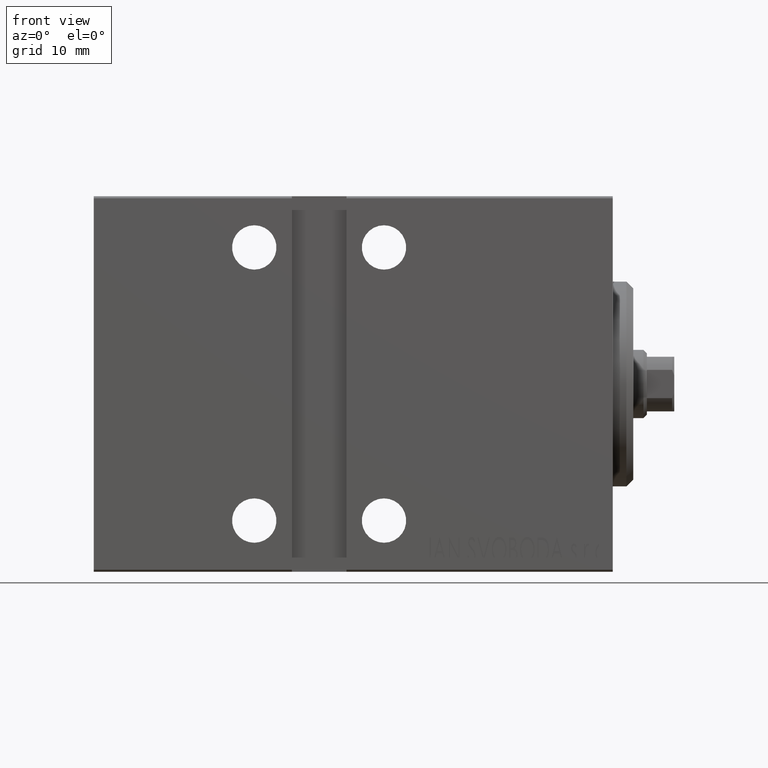
[diagram: clean part render]
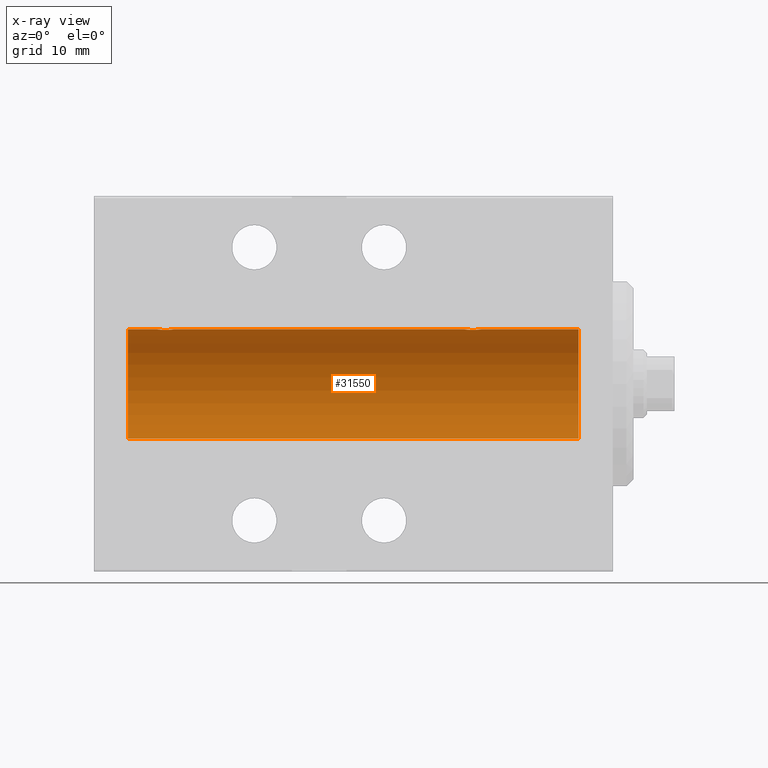
[diagram: x-ray — body ghosted, one internal face saturated and labeled with its STEP entity id]
A machine part, front view, then the same camera in x-ray: the body is ghosted and one INTERNAL B-rep face — a face not visible from any outside direction — is saturated and labeled: STEP entity #31550.
In plain terms, the highlighted cylindrical surface (partial cylindrical patch) has radius 8 mm, axis along (1, 0, -0).
Its self-contained STEP definition (entity closure, byte-faithful):
#763 = VECTOR ( 'NONE', #27886, 1000.000000000000000 ) ;
#1336 = CARTESIAN_POINT ( 'NONE',  ( 71.00000000000000000, 9.797174393178823685E-16, -7.999999999999998224 ) ) ;
#1907 = VERTEX_POINT ( 'NONE', #9327 ) ;
#2046 = CARTESIAN_POINT ( 'NONE',  ( 66.26815485876453238, -0.9994562523959157341, 7.938165420771272629 ) ) ;
#3177 = VECTOR ( 'NONE', #42206, 1000.000000000000000 ) ;
#3365 = CARTESIAN_POINT ( 'NONE',  ( 5.000000000000004441, 0.000000000000000000, 0.000000000000000000 ) ) ;
#3477 = VERTEX_POINT ( 'NONE', #24775 ) ;
#5051 = EDGE_CURVE ( 'NONE', #13544, #29026, #29034, .T. ) ;
#5337 = CARTESIAN_POINT ( 'NONE',  ( 64.25000000000000000, -0.1632520343443091548, 7.999999999999998224 ) ) ;
#5360 = CARTESIAN_POINT ( 'NONE',  ( 20.33400394983991433, -1.249894643705217412, 7.901756981264366431 ) ) ;
#5450 = CARTESIAN_POINT ( 'NONE',  ( 71.00000000000000000, 0.000000000000000000, 7.999999999999998224 ) ) ;
#5546 = VECTOR ( 'NONE', #18973, 1000.000000000000000 ) ;
#5558 = CARTESIAN_POINT ( 'NONE',  ( 65.82701716371744283, -1.217515856520240192, 7.907063872927293957 ) ) ;
#6018 = CARTESIAN_POINT ( 'NONE',  ( 21.71666607977186203, -0.3297258132310466050, 7.994620111903502746 ) ) ;
#6096 = CARTESIAN_POINT ( 'NONE',  ( 66.75000000000000000, 3.826567769925454797E-16, 7.999999999999998224 ) ) ;
#6875 = CARTESIAN_POINT ( 'NONE',  ( 21.75000000000001066, -0.1654128203352890902, 8.000000000000001776 ) ) ;
#8641 = CARTESIAN_POINT ( 'NONE',  ( 19.94455374345276155, -1.122809931695429198, 7.920878051565288125 ) ) ;
#8776 = LINE ( 'NONE', #1336, #32490 ) ;
#9052 = CARTESIAN_POINT ( 'NONE',  ( 64.28284287980513056, -0.3279446529214929407, 7.994696267489723951 ) ) ;
#9327 = CARTESIAN_POINT ( 'NONE',  ( 5.000000000000004441, 0.000000000000000000, 7.999999999999998224 ) ) ;
#9976 = ORIENTED_EDGE ( 'NONE', *, *, #30397, .T. ) ;
#10376 = CARTESIAN_POINT ( 'NONE',  ( 64.25000000000000000, -4.052102368803510290E-23, 7.999999999999998224 ) ) ;
#10384 = CARTESIAN_POINT ( 'NONE',  ( 71.00000000000000000, 9.797174393178823685E-16, -7.999999999999998224 ) ) ;
#10694 = EDGE_CURVE ( 'NONE', #40224, #1907, #24181, .T. ) ;
#11239 = ORIENTED_EDGE ( 'NONE', *, *, #33293, .F. ) ;
#11903 = CARTESIAN_POINT ( 'NONE',  ( 71.00000000000000000, 0.000000000000000000, 7.999999999999998224 ) ) ;
#11905 = CARTESIAN_POINT ( 'NONE',  ( 19.28284287980511991, -0.3279446529214880002, 7.994696267489722175 ) ) ;
#12730 = EDGE_CURVE ( 'NONE', #19331, #1907, #33633, .T. ) ;
#12768 = CARTESIAN_POINT ( 'NONE',  ( 64.94455374345275800, -1.122809931695436525, 7.920878051565286349 ) ) ;
#13140 = FACE_OUTER_BOUND ( 'NONE', #14057, .T. ) ;
#13544 = VERTEX_POINT ( 'NONE', #11903 ) ;
#14057 = EDGE_LOOP ( 'NONE', ( #17674, #24757, #21898, #15791, #31453, #11239, #9976, #35381 ) ) ;
#14693 = DIRECTION ( 'NONE',  ( -1.000000000000000000, -0.000000000000000000, -0.000000000000000000 ) ) ;
#15183 = CARTESIAN_POINT ( 'NONE',  ( 65.66440551148900795, -1.250104850332079520, 7.901723728054485640 ) ) ;
#15205 = CARTESIAN_POINT ( 'NONE',  ( 19.25000000000000711, -0.1632520343443078226, 7.999999999999998224 ) ) ;
#15425 = CARTESIAN_POINT ( 'NONE',  ( 19.40749082144730053, -0.6288424646912644800, 7.976670562295706368 ) ) ;
#15560 = CYLINDRICAL_SURFACE ( 'NONE', #35959, 7.999999999999998224 ) ;
#15791 = ORIENTED_EDGE ( 'NONE', *, *, #10694, .F. ) ;
#15839 = CARTESIAN_POINT ( 'NONE',  ( 64.73732994206311275, -0.9937204387496767488, 7.938174152191988853 ) ) ;
#15859 = CARTESIAN_POINT ( 'NONE',  ( 19.50041313324087611, -0.7680324342712150365, 7.963892330120037499 ) ) ;
#16048 = CARTESIAN_POINT ( 'NONE',  ( 64.25000000000000000, -4.052102368803510290E-23, 7.999999999999998224 ) ) ;
#16069 = CARTESIAN_POINT ( 'NONE',  ( 21.59165033467900230, -0.6303134207467927519, 7.976551562999469880 ) ) ;
#16208 = DIRECTION ( 'NONE',  ( 0.000000000000000000, 0.000000000000000000, 1.000000000000000000 ) ) ;
#16278 = B_SPLINE_CURVE_WITH_KNOTS ( 'NONE', 3,
 ( #19131, #15205, #11905, #15425, #15859, #25243, #29185, #38603, #8641, #35321, #5360, #18692, #29396, #22633, #35984, #39489, #16069, #6018, #6875, #33542 ),
 .UNSPECIFIED., .F., .F.,
 ( 4, 2, 2, 2, 2, 2, 2, 2, 2, 4 ),
 ( 0.003914068143704959972, 0.004403205918210077729, 0.004892343692715195487, 0.005136912579967754799, 0.005381481467220314112, 0.005870619241725423196, 0.006359757016230531412, 0.006848894790735639629, 0.007338032565240748713, 0.007827170339745857797 ),
 .UNSPECIFIED. ) ;
#16507 = DIRECTION ( 'NONE',  ( 0.000000000000000000, 0.000000000000000000, 1.000000000000000000 ) ) ;
#17500 = AXIS2_PLACEMENT_3D ( 'NONE', #22849, #30262, #16507 ) ;
#17629 = CARTESIAN_POINT ( 'NONE',  ( 5.000000000000004441, 9.797174393178823685E-16, -7.999999999999998224 ) ) ;
#17674 = ORIENTED_EDGE ( 'NONE', *, *, #36351, .F. ) ;
#17851 = CARTESIAN_POINT ( 'NONE',  ( 19.25000000000000355, -4.052102368803510290E-23, 7.999999999999998224 ) ) ;
#18692 = CARTESIAN_POINT ( 'NONE',  ( 20.66440551148902571, -1.250104850332073525, 7.901723728054483864 ) ) ;
#18889 = CARTESIAN_POINT ( 'NONE',  ( 66.59165033467903072, -0.6303134207467974148, 7.976551562999476985 ) ) ;
#18973 = DIRECTION ( 'NONE',  ( -1.000000000000000000, -0.000000000000000000, -0.000000000000000000 ) ) ;
#19131 = CARTESIAN_POINT ( 'NONE',  ( 19.25000000000000355, -4.052102368803510290E-23, 7.999999999999998224 ) ) ;
#19331 = VERTEX_POINT ( 'NONE', #17629 ) ;
#20197 = DIRECTION ( 'NONE',  ( -1.000000000000000000, 0.000000000000000000, 0.000000000000000000 ) ) ;
#21727 = CARTESIAN_POINT ( 'NONE',  ( 66.12943792732227166, -1.092287957405119414, 7.925333492638526600 ) ) ;
#21898 = ORIENTED_EDGE ( 'NONE', *, *, #12730, .T. ) ;
#21948 = CARTESIAN_POINT ( 'NONE',  ( 65.33400394983989656, -1.249894643705222297, 7.901756981264366431 ) ) ;
#22064 = LINE ( 'NONE', #5450, #3177 ) ;
#22329 = EDGE_CURVE ( 'NONE', #40224, #3477, #16278, .T. ) ;
#22633 = CARTESIAN_POINT ( 'NONE',  ( 21.12943792732230008, -1.092287957405114529, 7.925333492638531929 ) ) ;
#22849 = CARTESIAN_POINT ( 'NONE',  ( 71.00000000000000000, 0.000000000000000000, 0.000000000000000000 ) ) ;
#24181 = LINE ( 'NONE', #34028, #763 ) ;
#24757 = ORIENTED_EDGE ( 'NONE', *, *, #27034, .T. ) ;
#24775 = CARTESIAN_POINT ( 'NONE',  ( 21.75000000000000000, 3.044820801201121485E-16, 7.999999999999998224 ) ) ;
#25243 = CARTESIAN_POINT ( 'NONE',  ( 19.67312100220859961, -0.9409612394163486826, 7.944680966683013601 ) ) ;
#26118 = DIRECTION ( 'NONE',  ( 0.000000000000000000, 0.000000000000000000, 1.000000000000000000 ) ) ;
#27034 = EDGE_CURVE ( 'NONE', #41339, #19331, #8776, .T. ) ;
#27886 = DIRECTION ( 'NONE',  ( -1.000000000000000000, -0.000000000000000000, -0.000000000000000000 ) ) ;
#29026 = VERTEX_POINT ( 'NONE', #6096 ) ;
#29034 = LINE ( 'NONE', #32743, #5546 ) ;
#29165 = CARTESIAN_POINT ( 'NONE',  ( 66.75000000000000000, 3.826567769925454797E-16, 7.999999999999998224 ) ) ;
#29185 = CARTESIAN_POINT ( 'NONE',  ( 19.73732994206310565, -0.9937204387496696434, 7.938174152191990629 ) ) ;
#29375 = CARTESIAN_POINT ( 'NONE',  ( 64.67312100220857474, -0.9409612394163545668, 7.944680966683010936 ) ) ;
#29396 = CARTESIAN_POINT ( 'NONE',  ( 20.82701716371747125, -1.217515856520235751, 7.907063872927296622 ) ) ;
#30262 = DIRECTION ( 'NONE',  ( -1.000000000000000000, 0.000000000000000000, 0.000000000000000000 ) ) ;
#30397 = EDGE_CURVE ( 'NONE', #40613, #29026, #32384, .T. ) ;
#31453 = ORIENTED_EDGE ( 'NONE', *, *, #22329, .T. ) ;
#31550 = ADVANCED_FACE ( 'NONE', ( #13140 ), #15560, .F. ) ;
#31991 = CARTESIAN_POINT ( 'NONE',  ( 64.40749082144731119, -0.6288424646912691429, 7.976670562295704592 ) ) ;
#32384 = B_SPLINE_CURVE_WITH_KNOTS ( 'NONE', 3,
 ( #16048, #5337, #9052, #31991, #32443, #29375, #15839, #38802, #12768, #39466, #21948, #15183, #5558, #21727, #2046, #35082, #18889, #35301, #42093, #29165 ),
 .UNSPECIFIED., .F., .F.,
 ( 4, 2, 2, 2, 2, 2, 2, 2, 2, 4 ),
 ( 0.003914068143704953900, 0.004403205918210113291, 0.004892343692715272682, 0.005136912579967838066, 0.005381481467220403450, 0.005870619241725495187, 0.006359757016230586923, 0.006848894790735679527, 0.007338032565240772132, 0.007827170339745864736 ),
 .UNSPECIFIED. ) ;
#32443 = CARTESIAN_POINT ( 'NONE',  ( 64.50041313324085479, -0.7680324342712208097, 7.963892330120033947 ) ) ;
#32490 = VECTOR ( 'NONE', #14693, 1000.000000000000000 ) ;
#32743 = CARTESIAN_POINT ( 'NONE',  ( 71.00000000000000000, 0.000000000000000000, 7.999999999999998224 ) ) ;
#33293 = EDGE_CURVE ( 'NONE', #40613, #3477, #22064, .T. ) ;
#33542 = CARTESIAN_POINT ( 'NONE',  ( 21.75000000000000000, 3.044820801201121485E-16, 7.999999999999998224 ) ) ;
#33633 = CIRCLE ( 'NONE', #39232, 7.999999999999998224 ) ;
#34028 = CARTESIAN_POINT ( 'NONE',  ( 71.00000000000000000, 0.000000000000000000, 7.999999999999998224 ) ) ;
#35082 = CARTESIAN_POINT ( 'NONE',  ( 66.49841755665748622, -0.7695044314719109435, 7.963745725343518878 ) ) ;
#35301 = CARTESIAN_POINT ( 'NONE',  ( 66.71666607977186914, -0.3297258132310484924, 7.994620111903502746 ) ) ;
#35321 = CARTESIAN_POINT ( 'NONE',  ( 20.17169333885885507, -1.217212176555596992, 7.907113222863031865 ) ) ;
#35381 = ORIENTED_EDGE ( 'NONE', *, *, #5051, .F. ) ;
#35959 = AXIS2_PLACEMENT_3D ( 'NONE', #38953, #36115, #16208 ) ;
#35984 = CARTESIAN_POINT ( 'NONE',  ( 21.26815485876450751, -0.9994562523959109601, 7.938165420771274405 ) ) ;
#36115 = DIRECTION ( 'NONE',  ( -1.000000000000000000, -0.000000000000000000, -0.000000000000000000 ) ) ;
#36351 = EDGE_CURVE ( 'NONE', #41339, #13544, #36377, .T. ) ;
#36377 = CIRCLE ( 'NONE', #17500, 7.999999999999998224 ) ;
#38603 = CARTESIAN_POINT ( 'NONE',  ( 19.87285837165014257, -1.084361243153316723, 7.926301147147065684 ) ) ;
#38802 = CARTESIAN_POINT ( 'NONE',  ( 64.87285837165016744, -1.084361243153322940, 7.926301147147063908 ) ) ;
#38953 = CARTESIAN_POINT ( 'NONE',  ( 71.00000000000000000, 0.000000000000000000, 0.000000000000000000 ) ) ;
#39232 = AXIS2_PLACEMENT_3D ( 'NONE', #3365, #20197, #26118 ) ;
#39466 = CARTESIAN_POINT ( 'NONE',  ( 65.17169333885885862, -1.217212176555603431, 7.907113222863028312 ) ) ;
#39489 = CARTESIAN_POINT ( 'NONE',  ( 21.49841755665747911, -0.7695044314719066136, 7.963745725343520654 ) ) ;
#40224 = VERTEX_POINT ( 'NONE', #17851 ) ;
#40613 = VERTEX_POINT ( 'NONE', #10376 ) ;
#41339 = VERTEX_POINT ( 'NONE', #10384 ) ;
#42093 = CARTESIAN_POINT ( 'NONE',  ( 66.74999999999998579, -0.1654128203352888959, 7.999999999999998224 ) ) ;
#42206 = DIRECTION ( 'NONE',  ( -1.000000000000000000, -0.000000000000000000, -0.000000000000000000 ) ) ;